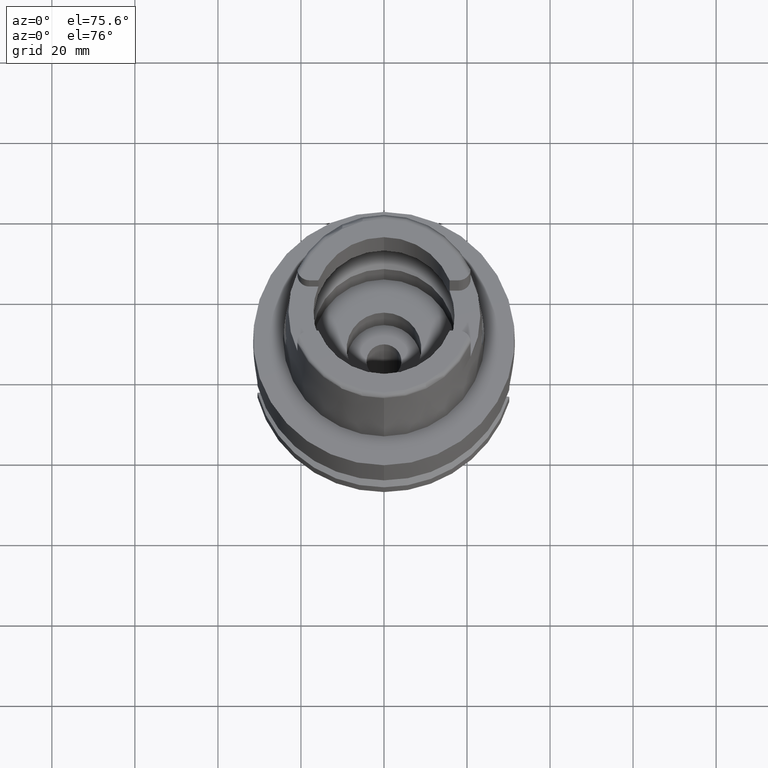
[diagram: clean part render]
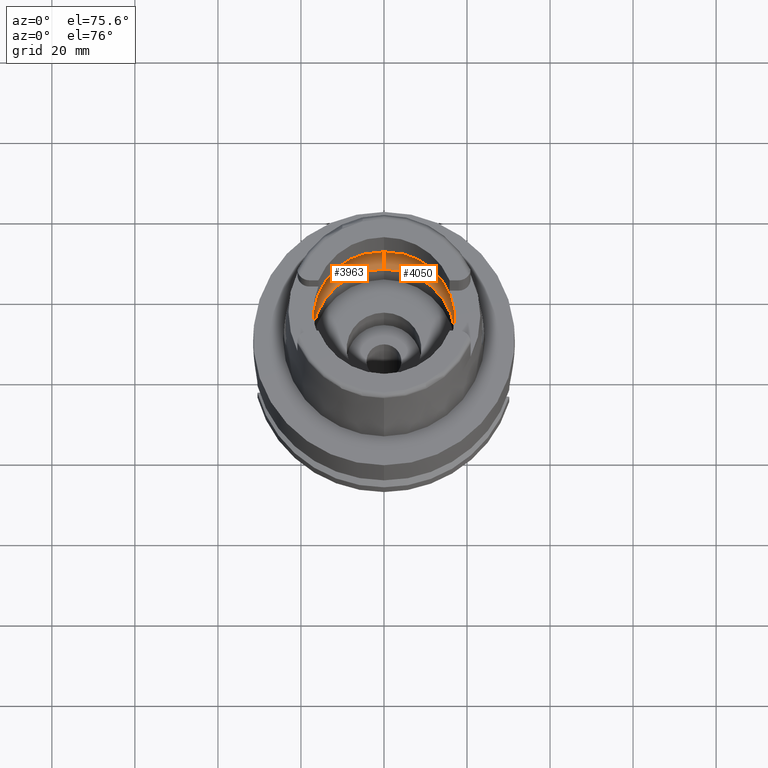
[diagram: same view with one multi-face feature highlighted, each face labeled with its STEP entity id]
A machine part, auxiliary view. The highlighted faces form ONE feature: a constant-radius fillet chain: 2 tangent blend faces with common blend radius 8 mm. The faces share edges in the B-rep.
Their STEP definitions:
[1] entity #4050 (Torus):
#1999=CARTESIAN_POINT('',(0.E0,-1.2E1,6.186348233825E0));
#2000=DIRECTION('',(-1.E0,0.E0,0.E0));
#2001=DIRECTION('',(0.E0,-6.5625E-1,-7.545435292281E-1));
#2002=AXIS2_PLACEMENT_3D('',#1999,#2000,#2001);
#2061=CARTESIAN_POINT('',(1.984575864666E1,-2.479085262491E0,6.186348233825E0));
#2088=CARTESIAN_POINT('',(1.984575864666E1,2.479085262491E0,6.186348233825E0));
#2107=CARTESIAN_POINT('',(1.994501428476E1,0.E0,5.25E0));
#2108=CARTESIAN_POINT('',(1.994501428476E1,-3.022957154466E-1,5.25E0));
#2109=CARTESIAN_POINT('',(1.994018609693E1,-9.060474356404E-1,
5.323296439589E0));
#2110=CARTESIAN_POINT('',(1.991331550025E1,-1.759139202252E0,5.647061182125E0));
#2111=CARTESIAN_POINT('',(1.987369610543E1,-2.255438229266E0,5.989294685574E0));
#2112=CARTESIAN_POINT('',(1.984575864666E1,-2.479085262491E0,6.186348233825E0));
#2117=CARTESIAN_POINT('',(0.E0,0.E0,6.186348233825E0));
#2118=DIRECTION('',(0.E0,0.E0,-1.E0));
#2119=DIRECTION('',(9.922879323328E-1,-1.239542631245E-1,0.E0));
#2120=AXIS2_PLACEMENT_3D('',#2117,#2118,#2119);
#2125=CARTESIAN_POINT('',(0.E0,0.E0,1.500000000001E-1));
#2126=DIRECTION('',(0.E0,0.E0,1.E0));
#2127=DIRECTION('',(0.E0,-1.E0,0.E0));
#2128=AXIS2_PLACEMENT_3D('',#2125,#2126,#2127);
#2133=CARTESIAN_POINT('',(0.E0,1.2E1,6.186348233825E0));
#2134=DIRECTION('',(1.E0,0.E0,0.E0));
#2135=DIRECTION('',(0.E0,6.5625E-1,-7.545435292281E-1));
#2136=AXIS2_PLACEMENT_3D('',#2133,#2134,#2135);
#2141=CARTESIAN_POINT('',(0.E0,0.E0,6.186348233825E0));
#2142=DIRECTION('',(0.E0,0.E0,-1.E0));
#2143=DIRECTION('',(0.E0,1.E0,0.E0));
#2144=AXIS2_PLACEMENT_3D('',#2141,#2142,#2143);
#2149=CARTESIAN_POINT('',(1.984575864666E1,2.479085262491E0,6.186348233825E0));
#2150=CARTESIAN_POINT('',(1.987369683552E1,2.255432384732E0,5.989289536004E0));
#2151=CARTESIAN_POINT('',(1.991331633330E1,1.759123026949E0,5.647052493715E0));
#2152=CARTESIAN_POINT('',(1.994018619685E1,9.060366292765E-1,5.323294636829E0));
#2153=CARTESIAN_POINT('',(1.994501428476E1,3.022911403854E-1,5.25E0));
#2154=CARTESIAN_POINT('',(1.994501428476E1,0.E0,5.25E0));
#2311=CARTESIAN_POINT('',(0.E0,-2.E1,6.186348233825E0));
#2312=VERTEX_POINT('',#2311);
#2313=CARTESIAN_POINT('',(0.E0,2.E1,6.186348233825E0));
#2314=VERTEX_POINT('',#2313);
#2319=VERTEX_POINT('',#2061);
#2321=VERTEX_POINT('',#2107);
#2322=VERTEX_POINT('',#2088);
#2323=CARTESIAN_POINT('',(0.E0,1.725E1,1.500000000001E-1));
#2324=VERTEX_POINT('',#2323);
#2325=CARTESIAN_POINT('',(0.E0,-1.725E1,1.500000000001E-1));
#2326=VERTEX_POINT('',#2325);
#4035=CARTESIAN_POINT('',(0.E0,0.E0,6.186348233825E0));
#4036=DIRECTION('',(0.E0,0.E0,1.E0));
#4037=DIRECTION('',(0.E0,1.E0,0.E0));
#4038=AXIS2_PLACEMENT_3D('',#4035,#4036,#4037);
#4039=TOROIDAL_SURFACE('',#4038,1.2E1,8.E0);
#4040=ORIENTED_EDGE('',*,*,#4025,.T.);
#4041=ORIENTED_EDGE('',*,*,#4014,.T.);
#4042=ORIENTED_EDGE('',*,*,#3957,.F.);
#4043=ORIENTED_EDGE('',*,*,#3922,.T.);
#4044=ORIENTED_EDGE('',*,*,#3954,.T.);
#4045=ORIENTED_EDGE('',*,*,#4008,.T.);
#4047=ORIENTED_EDGE('',*,*,#4046,.T.);
#4048=EDGE_LOOP('',(#4040,#4041,#4042,#4043,#4044,#4045,#4047));
#4049=FACE_OUTER_BOUND('',#4048,.F.);
#2003=CIRCLE('',#2002,8.E0);
#2113=B_SPLINE_CURVE_WITH_KNOTS('',3,(#2107,#2108,#2109,#2110,#2111,#2112),
.UNSPECIFIED.,.F.,.F.,(4,1,1,4),(0.E0,3.333333333333E-1,6.666666666667E-1,1.E0),
.UNSPECIFIED.);
#2121=CIRCLE('',#2120,2.E1);
#2129=CIRCLE('',#2128,1.725E1);
#2137=CIRCLE('',#2136,8.E0);
#2145=CIRCLE('',#2144,2.E1);
#2155=B_SPLINE_CURVE_WITH_KNOTS('',3,(#2149,#2150,#2151,#2152,#2153,#2154),
.UNSPECIFIED.,.F.,.F.,(4,1,1,4),(0.E0,3.333333333333E-1,6.666666666667E-1,1.E0),
.UNSPECIFIED.);
#3922=EDGE_CURVE('',#2326,#2324,#2129,.T.);
#3954=EDGE_CURVE('',#2324,#2314,#2137,.T.);
#3957=EDGE_CURVE('',#2326,#2312,#2003,.T.);
#4008=EDGE_CURVE('',#2314,#2322,#2145,.T.);
#4014=EDGE_CURVE('',#2319,#2312,#2121,.T.);
#4025=EDGE_CURVE('',#2321,#2319,#2113,.T.);
#4046=EDGE_CURVE('',#2322,#2321,#2155,.T.);
#4050=ADVANCED_FACE('',(#4049),#4039,.F.);
[2] entity #3963 (Torus):
#1963=CARTESIAN_POINT('',(-1.984575864666E1,-2.479085262491E0,
6.186348233825E0));
#1964=CARTESIAN_POINT('',(-1.987369637762E1,-2.255436050342E0,
5.989292765742E0));
#1965=CARTESIAN_POINT('',(-1.991331581871E1,-1.759133185383E0,
5.647057889337E0));
#1966=CARTESIAN_POINT('',(-1.994018615095E1,-9.060425565455E-1,
5.323295534197E0));
#1967=CARTESIAN_POINT('',(-1.994501428476E1,-3.022936309386E-1,5.25E0));
#1968=CARTESIAN_POINT('',(-1.994501428476E1,0.E0,5.25E0));
#1973=CARTESIAN_POINT('',(-1.994501428476E1,0.E0,5.25E0));
#1974=CARTESIAN_POINT('',(-1.994501428476E1,3.022931930043E-1,5.25E0));
#1975=CARTESIAN_POINT('',(-1.994018614423E1,9.060414364937E-1,
5.323295523152E0));
#1976=CARTESIAN_POINT('',(-1.991331601589E1,1.759129035713E0,5.647055777419E0));
#1977=CARTESIAN_POINT('',(-1.987369656375E1,2.255434560347E0,5.989291452920E0));
#1978=CARTESIAN_POINT('',(-1.984575864666E1,2.479085262491E0,6.186348233825E0));
#1983=CARTESIAN_POINT('',(0.E0,0.E0,6.186348233825E0));
#1984=DIRECTION('',(0.E0,0.E0,-1.E0));
#1985=DIRECTION('',(-9.922879323328E-1,1.239542631245E-1,0.E0));
#1986=AXIS2_PLACEMENT_3D('',#1983,#1984,#1985);
#1991=CARTESIAN_POINT('',(0.E0,0.E0,1.500000000001E-1));
#1992=DIRECTION('',(0.E0,0.E0,1.E0));
#1993=DIRECTION('',(0.E0,1.E0,0.E0));
#1994=AXIS2_PLACEMENT_3D('',#1991,#1992,#1993);
#1999=CARTESIAN_POINT('',(0.E0,-1.2E1,6.186348233825E0));
#2000=DIRECTION('',(-1.E0,0.E0,0.E0));
#2001=DIRECTION('',(0.E0,-6.5625E-1,-7.545435292281E-1));
#2002=AXIS2_PLACEMENT_3D('',#1999,#2000,#2001);
#2007=CARTESIAN_POINT('',(0.E0,0.E0,6.186348233825E0));
#2008=DIRECTION('',(0.E0,0.E0,-1.E0));
#2009=DIRECTION('',(0.E0,-1.E0,0.E0));
#2010=AXIS2_PLACEMENT_3D('',#2007,#2008,#2009);
#2033=CARTESIAN_POINT('',(-1.984575864666E1,-2.479085262491E0,
6.186348233825E0));
#2133=CARTESIAN_POINT('',(0.E0,1.2E1,6.186348233825E0));
#2134=DIRECTION('',(1.E0,0.E0,0.E0));
#2135=DIRECTION('',(0.E0,6.5625E-1,-7.545435292281E-1));
#2136=AXIS2_PLACEMENT_3D('',#2133,#2134,#2135);
#2310=VERTEX_POINT('',#2033);
#2311=CARTESIAN_POINT('',(0.E0,-2.E1,6.186348233825E0));
#2312=VERTEX_POINT('',#2311);
#2313=CARTESIAN_POINT('',(0.E0,2.E1,6.186348233825E0));
#2314=VERTEX_POINT('',#2313);
#2315=CARTESIAN_POINT('',(-1.984575864666E1,2.479085262490E0,6.186348233825E0));
#2316=VERTEX_POINT('',#2315);
#2317=CARTESIAN_POINT('',(-1.994501428476E1,0.E0,5.25E0));
#2318=VERTEX_POINT('',#2317);
#2323=CARTESIAN_POINT('',(0.E0,1.725E1,1.500000000001E-1));
#2324=VERTEX_POINT('',#2323);
#2325=CARTESIAN_POINT('',(0.E0,-1.725E1,1.500000000001E-1));
#2326=VERTEX_POINT('',#2325);
#3943=CARTESIAN_POINT('',(0.E0,0.E0,6.186348233825E0));
#3944=DIRECTION('',(0.E0,0.E0,1.E0));
#3945=DIRECTION('',(0.E0,1.E0,0.E0));
#3946=AXIS2_PLACEMENT_3D('',#3943,#3944,#3945);
#3947=TOROIDAL_SURFACE('',#3946,1.2E1,8.E0);
#3949=ORIENTED_EDGE('',*,*,#3948,.T.);
#3951=ORIENTED_EDGE('',*,*,#3950,.T.);
#3953=ORIENTED_EDGE('',*,*,#3952,.T.);
#3955=ORIENTED_EDGE('',*,*,#3954,.F.);
#3956=ORIENTED_EDGE('',*,*,#3938,.T.);
#3958=ORIENTED_EDGE('',*,*,#3957,.T.);
#3960=ORIENTED_EDGE('',*,*,#3959,.T.);
#3961=EDGE_LOOP('',(#3949,#3951,#3953,#3955,#3956,#3958,#3960));
#3962=FACE_OUTER_BOUND('',#3961,.F.);
#1969=B_SPLINE_CURVE_WITH_KNOTS('',3,(#1963,#1964,#1965,#1966,#1967,#1968),
.UNSPECIFIED.,.F.,.F.,(4,1,1,4),(0.E0,3.333333333333E-1,6.666666666667E-1,1.E0),
.UNSPECIFIED.);
#1979=B_SPLINE_CURVE_WITH_KNOTS('',3,(#1973,#1974,#1975,#1976,#1977,#1978),
.UNSPECIFIED.,.F.,.F.,(4,1,1,4),(0.E0,3.333333333333E-1,6.666666666667E-1,1.E0),
.UNSPECIFIED.);
#1987=CIRCLE('',#1986,2.E1);
#1995=CIRCLE('',#1994,1.725E1);
#2003=CIRCLE('',#2002,8.E0);
#2011=CIRCLE('',#2010,2.E1);
#2137=CIRCLE('',#2136,8.E0);
#3938=EDGE_CURVE('',#2324,#2326,#1995,.T.);
#3948=EDGE_CURVE('',#2310,#2318,#1969,.T.);
#3950=EDGE_CURVE('',#2318,#2316,#1979,.T.);
#3952=EDGE_CURVE('',#2316,#2314,#1987,.T.);
#3954=EDGE_CURVE('',#2324,#2314,#2137,.T.);
#3957=EDGE_CURVE('',#2326,#2312,#2003,.T.);
#3959=EDGE_CURVE('',#2312,#2310,#2011,.T.);
#3963=ADVANCED_FACE('',(#3962),#3947,.F.);